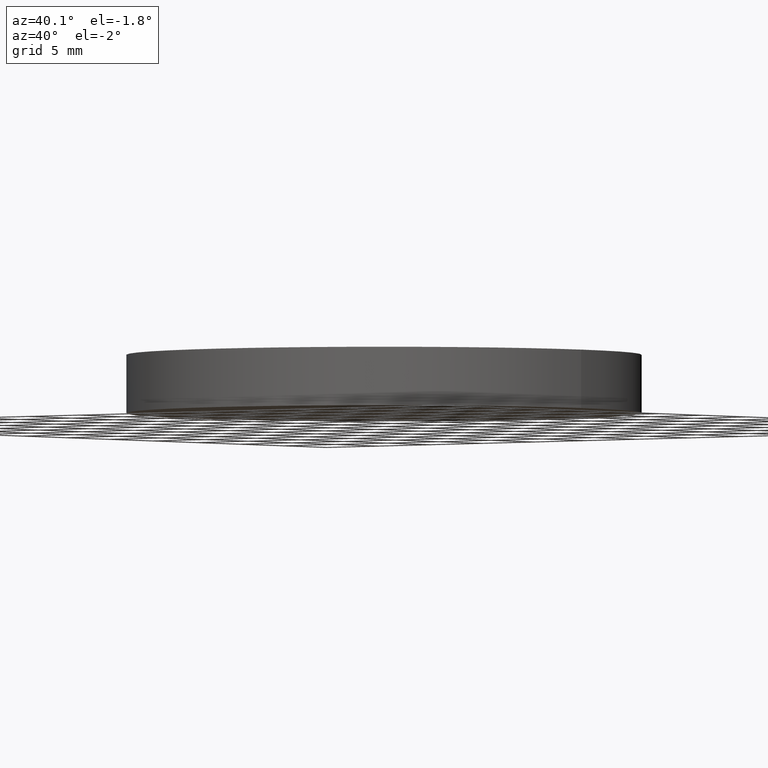
[diagram: clean part render]
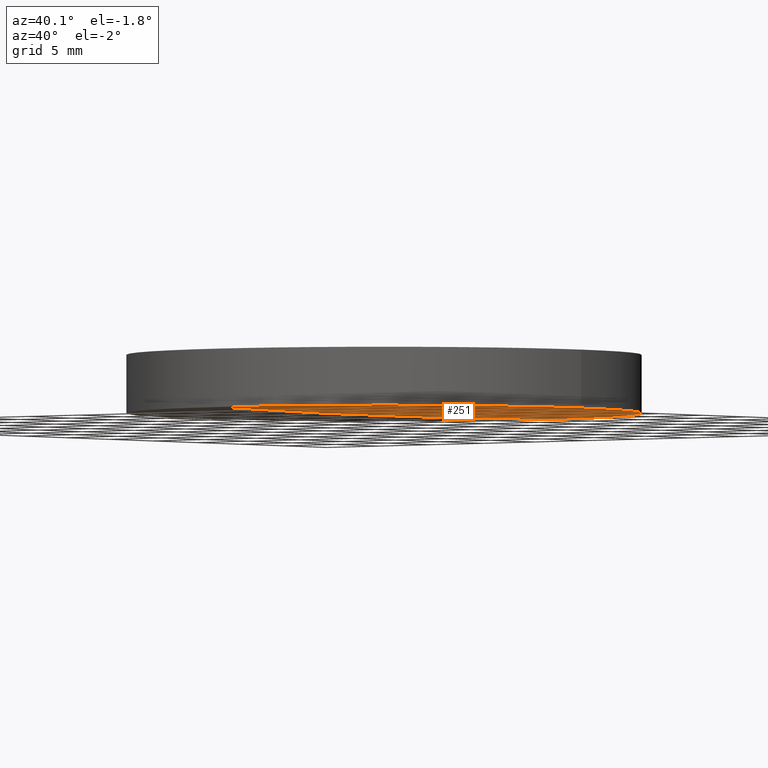
[diagram: same view with one face highlighted and labeled with its STEP entity id]
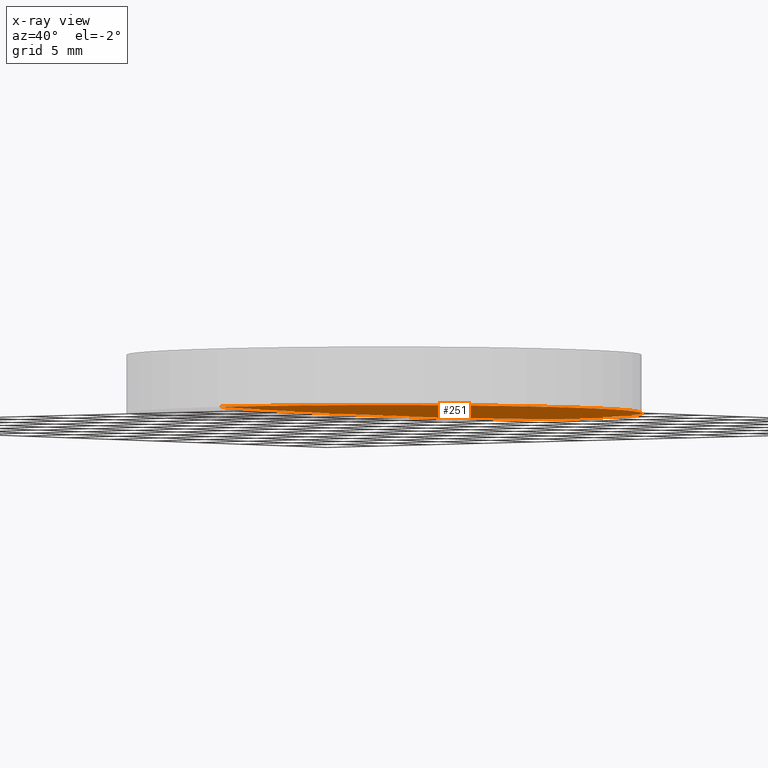
[diagram: x-ray of the same camera — body ghosted, the highlighted face saturated]
A machine part, auxiliary view. The second image highlights one B-rep face of the part: STEP entity #251.
The next image is the same camera in x-ray: the body ghosted, the highlighted face saturated — about 0% of this face is hidden behind the body in this view.
In plain terms, the highlighted face is a freeform B-spline surface patch.
Its self-contained STEP definition (entity closure, byte-faithful):
#7 = CARTESIAN_POINT ( 'NONE',  ( 6.387323224291834300, -19.27856889239519600, 0.1953444282029022100 ) ) ;
#12 = CARTESIAN_POINT ( 'NONE',  ( 19.04999999999999700, -8.881784197001250400E-016, 0.1907393743477660000 ) ) ;
#19 = VERTEX_POINT ( 'NONE', #228 ) ;
#25 = DIRECTION ( 'NONE',  ( 1.000000000000000000, 0.0000000000000000000, 0.0000000000000000000 ) ) ;
#49 = ORIENTED_EDGE ( 'NONE', *, *, #91, .T. ) ;
#55 = CARTESIAN_POINT ( 'NONE',  ( -4.662936703425659800E-015, -8.881784197001250400E-016, 0.1907393743477660000 ) ) ;
#58 = CARTESIAN_POINT ( 'NONE',  ( 12.77782043992595200, -6.427069381476894900, -0.0007721311228134657900 ) ) ;
#63 = ORIENTED_EDGE ( 'NONE', *, *, #141, .T. ) ;
#66 = AXIS2_PLACEMENT_3D ( 'NONE', #55, #234, #103 ) ;
#80 = CARTESIAN_POINT ( 'NONE',  ( 6.387323224291834300, 19.27856889239533100, 0.1953444282029022100 ) ) ;
#91 = EDGE_CURVE ( 'NONE', #283, #119, #126, .T. ) ;
#103 = DIRECTION ( 'NONE',  ( 1.000000000000000000, 0.0000000000000000000, 0.0000000000000000000 ) ) ;
#108 = CARTESIAN_POINT ( 'NONE',  ( -1.212149162115420200E-013, 19.05000000000057600, 0.1907393743477681600 ) ) ;
#119 = VERTEX_POINT ( 'NONE', #12 ) ;
#126 = CIRCLE ( 'NONE', #294, 19.05000000000000100 ) ;
#132 = CARTESIAN_POINT ( 'NONE',  ( 19.16034971357646600, 19.27856889239533400, 0.3883398294663436000 ) ) ;
#135 = CARTESIAN_POINT ( 'NONE',  ( 6.389072263540030300, 6.427069381477029900, -0.06512372367224510100 ) ) ;
#141 = EDGE_CURVE ( 'NONE', #19, #283, #192, .T. ) ;
#153 = CARTESIAN_POINT ( 'NONE',  ( -1.212781017722589300E-013, 6.427069381477029000, -0.06512372367224353300 ) ) ;
#154 = CARTESIAN_POINT ( 'NONE',  ( 6.389072263540030300, -6.427069381476894900, -0.06512372367224635000 ) ) ;
#156 = CARTESIAN_POINT ( 'NONE',  ( 1.136868377216160000E-013, 1.136868377216160000E-013, 951.3999999999999800 ) ) ;
#158 = CARTESIAN_POINT ( 'NONE',  ( 19.16559638772797000, 6.427069381477029000, 0.1279245254774982700 ) ) ;
#181 = DIRECTION ( 'NONE',  ( -0.0000000000000000000, -0.0000000000000000000, -1.000000000000000000 ) ) ;
#182 = CARTESIAN_POINT ( 'NONE',  ( -1.212137789904569600E-013, -19.27856889239519900, 0.1953444282029037600 ) ) ;
#183 = ORIENTED_EDGE ( 'NONE', *, *, #275, .T. ) ;
#186 = EDGE_LOOP ( 'NONE', ( #183, #63, #49 ) ) ;
#192 = CIRCLE ( 'NONE', #207, 951.3999999999999800 ) ;
#194 = CARTESIAN_POINT ( 'NONE',  ( -1.212781017722589300E-013, -6.427069381476893100, -0.06512372367224478200 ) ) ;
#197 = DIRECTION ( 'NONE',  ( 0.0000000000000000000, -1.000000000000000000, -2.333872240120152600E-016 ) ) ;
#207 = AXIS2_PLACEMENT_3D ( 'NONE', #156, #259, #197 ) ;
#217 = CARTESIAN_POINT ( 'NONE',  ( -1.212137789904569600E-013, 19.27856889239533400, 0.1953444282029037600 ) ) ;
#218 = CARTESIAN_POINT ( 'NONE',  ( -4.662936703425659800E-015, -8.881784197001250400E-016, 0.1907393743477660000 ) ) ;
#222 = CARTESIAN_POINT ( 'NONE',  ( 19.16034971357646600, -19.27856889239519900, 0.3883398294663436000 ) ) ;
#228 = CARTESIAN_POINT ( 'NONE',  ( -1.212149162115420200E-013, -19.05000000000046300, 0.1907393743477681600 ) ) ;
#234 = DIRECTION ( 'NONE',  ( -0.0000000000000000000, -0.0000000000000000000, -1.000000000000000000 ) ) ;
#251 = ADVANCED_FACE ( 'NONE', ( #268 ), #254, .T. ) ;
#254 =( BOUNDED_SURFACE ( )  B_SPLINE_SURFACE ( 3, 3, ( 
 ( #182, #7, #263, #222 ),
 ( #194, #154, #58, #258 ),
 ( #153, #135, #281, #158 ),
 ( #217, #80, #256, #132 ) ),
 .UNSPECIFIED., .F., .F., .F. ) 
 B_SPLINE_SURFACE_WITH_KNOTS ( ( 4, 4 ),
 ( 4, 4 ),
 ( 0.0000000000000000000, 1.000000000000000000 ),
 ( 0.0000000000000000000, 1.000000000000000000 ),
 .UNSPECIFIED. ) 
 GEOMETRIC_REPRESENTATION_ITEM ( )  RATIONAL_B_SPLINE_SURFACE ( (
 ( 1.000000000000000000, 0.9999661831806077000, 0.9999661831806077000, 1.000000000000000000),
 ( 0.9998631179117070100, 0.9998293057212315200, 0.9998293057212315200, 0.9998631179117070100),
 ( 0.9998631179117070100, 0.9998293057212315200, 0.9998293057212315200, 0.9998631179117070100),
 ( 1.000000000000000000, 0.9999661831806077000, 0.9999661831806077000, 1.000000000000000000) ) ) 
 REPRESENTATION_ITEM ( '' )  SURFACE ( )  );
#256 = CARTESIAN_POINT ( 'NONE',  ( 12.77432245014997900, 19.27856889239533100, 0.2596784041944985000 ) ) ;
#258 = CARTESIAN_POINT ( 'NONE',  ( 19.16559638772797000, -6.427069381476893100, 0.1279245254774970300 ) ) ;
#259 = DIRECTION ( 'NONE',  ( 1.000000000000000000, 6.034084082518540200E-032, -2.469506591837139800E-016 ) ) ;
#263 = CARTESIAN_POINT ( 'NONE',  ( 12.77432245014997900, -19.27856889239519600, 0.2596784041944985000 ) ) ;
#268 = FACE_OUTER_BOUND ( 'NONE', #186, .T. ) ;
#270 = CIRCLE ( 'NONE', #66, 19.05000000000000100 ) ;
#275 = EDGE_CURVE ( 'NONE', #119, #19, #270, .T. ) ;
#281 = CARTESIAN_POINT ( 'NONE',  ( 12.77782043992595200, 6.427069381477029900, -0.0007721311228122189600 ) ) ;
#283 = VERTEX_POINT ( 'NONE', #108 ) ;
#294 = AXIS2_PLACEMENT_3D ( 'NONE', #218, #181, #25 ) ;